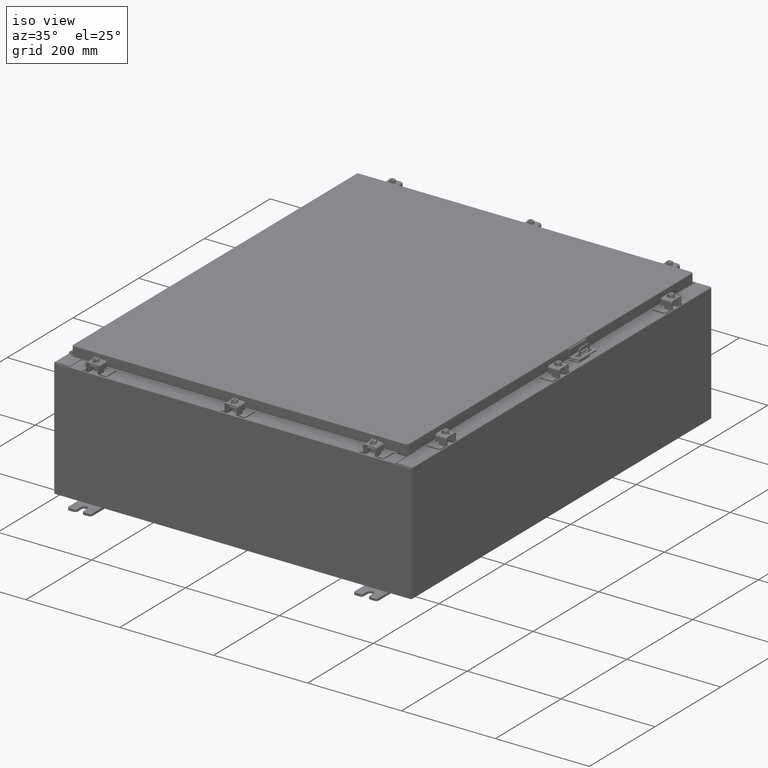
[diagram: clean part render]
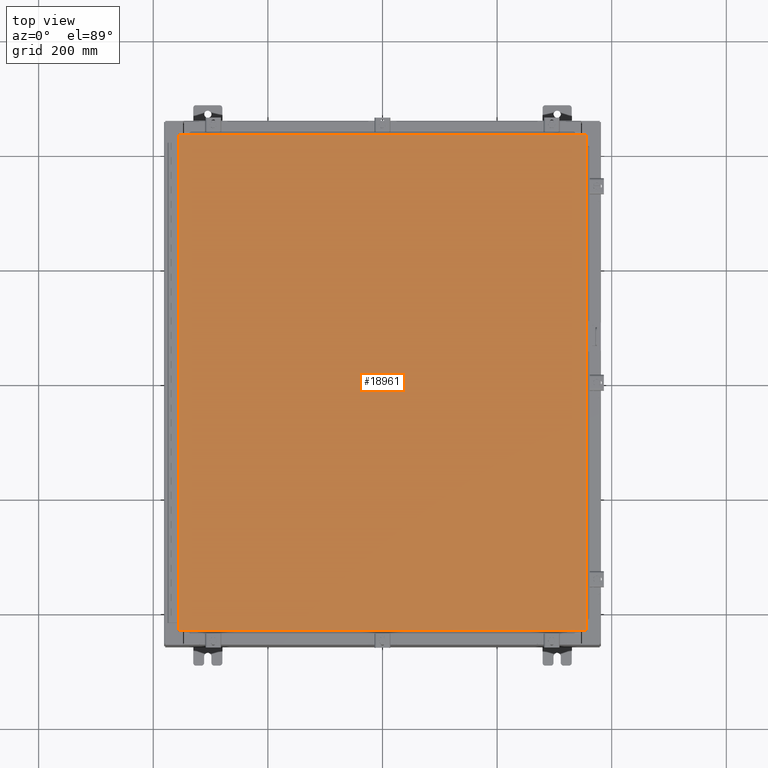
[diagram: tour spotlight — one face highlighted and labeled with its STEP entity id]
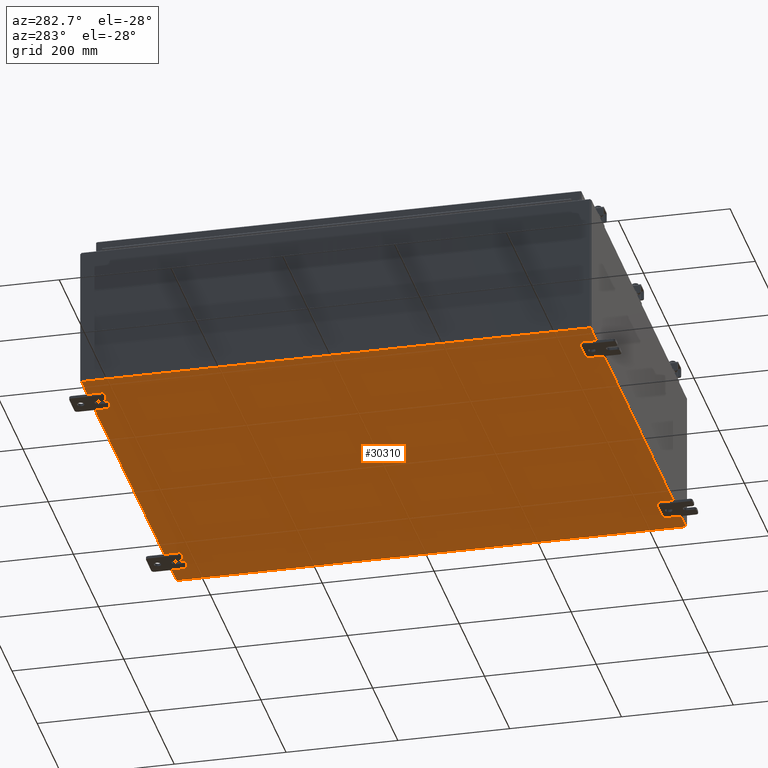
[diagram: tour spotlight — one face highlighted and labeled with its STEP entity id]
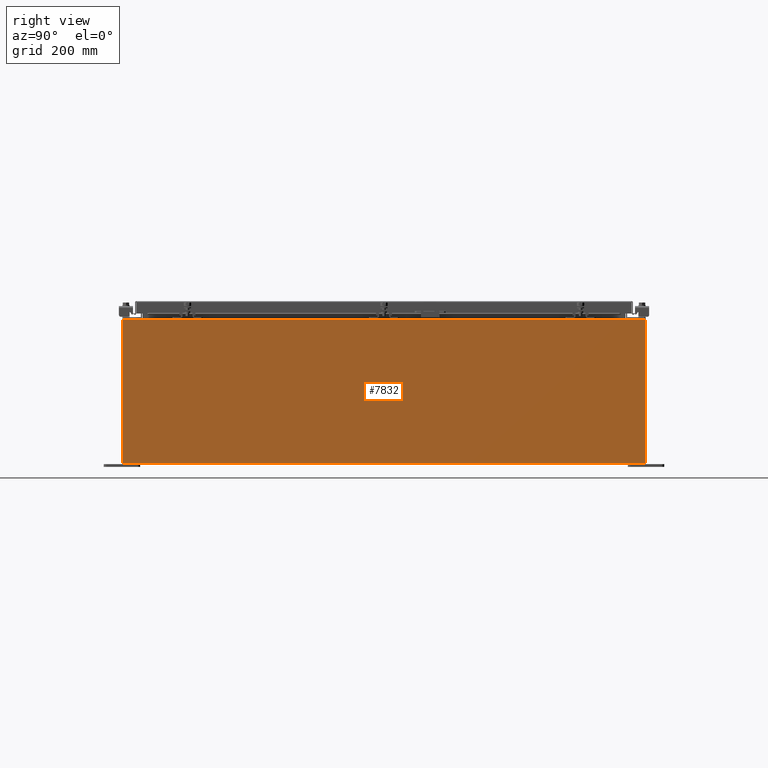
[diagram: tour spotlight — one face highlighted and labeled with its STEP entity id]
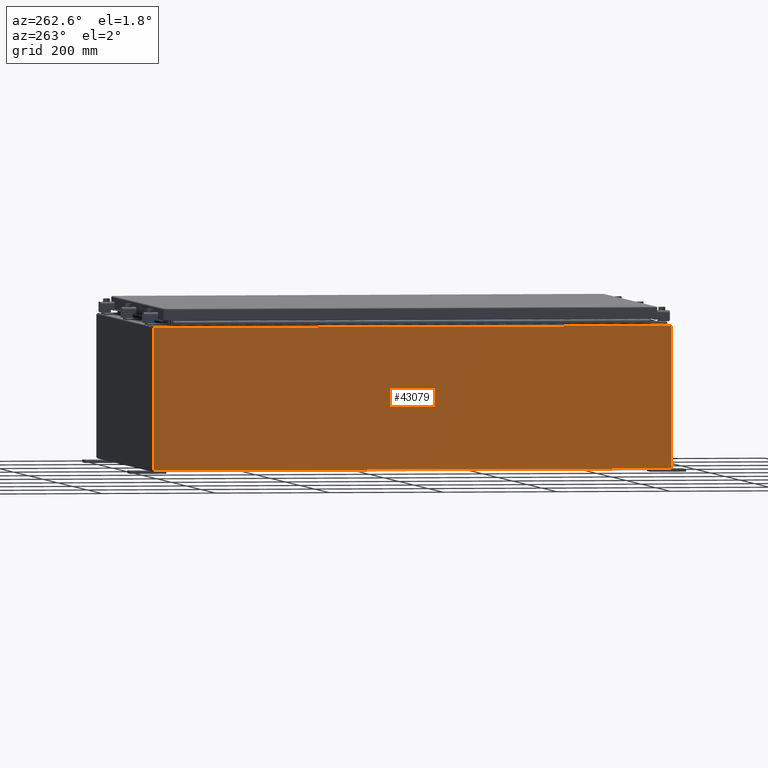
[diagram: tour spotlight — one face highlighted and labeled with its STEP entity id]
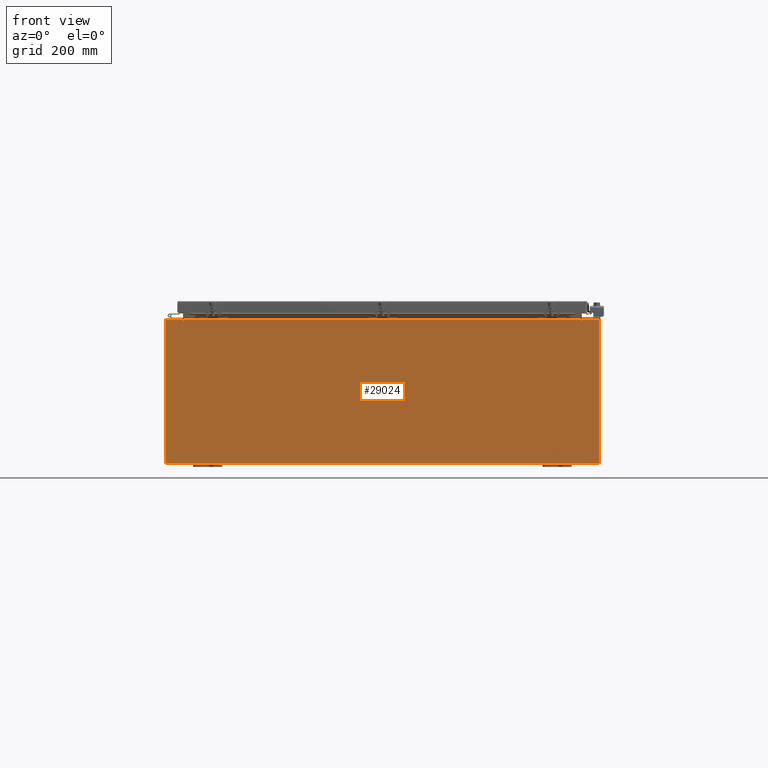
[diagram: tour spotlight — one face highlighted and labeled with its STEP entity id]
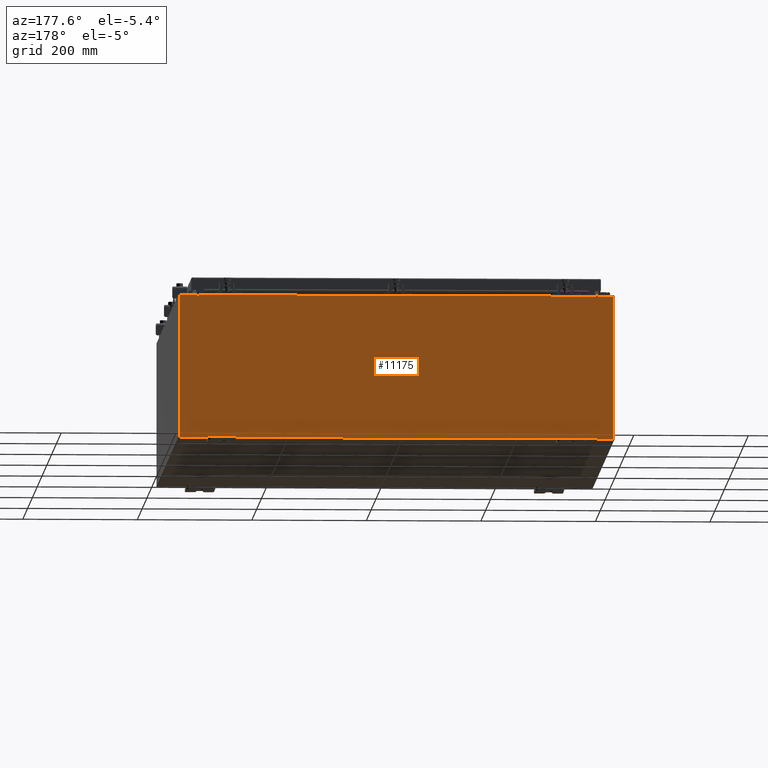
[diagram: tour spotlight — one face highlighted and labeled with its STEP entity id]
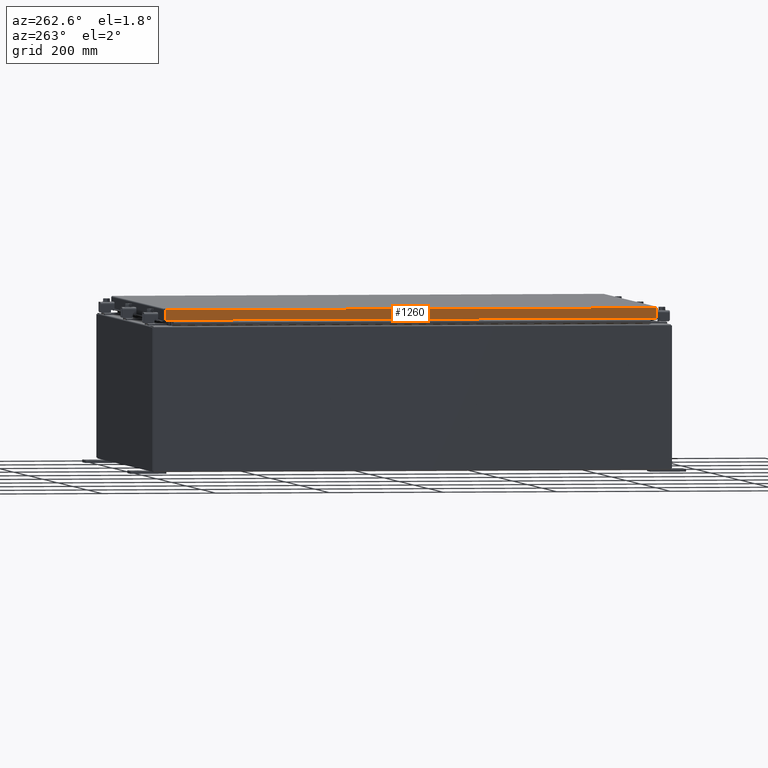
[diagram: tour spotlight — one face highlighted and labeled with its STEP entity id]
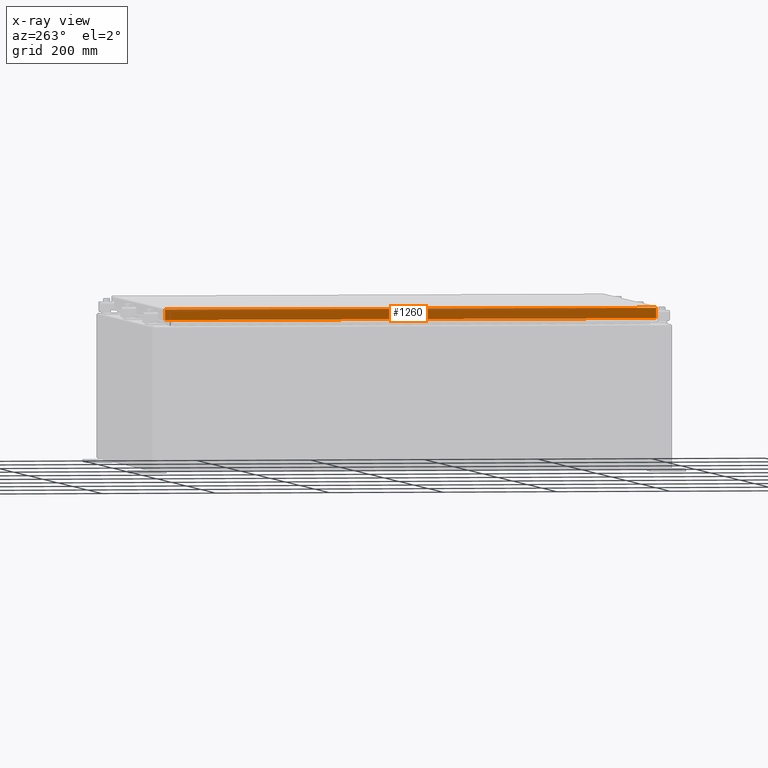
[diagram: x-ray of the same camera — body ghosted, this tour face saturated]
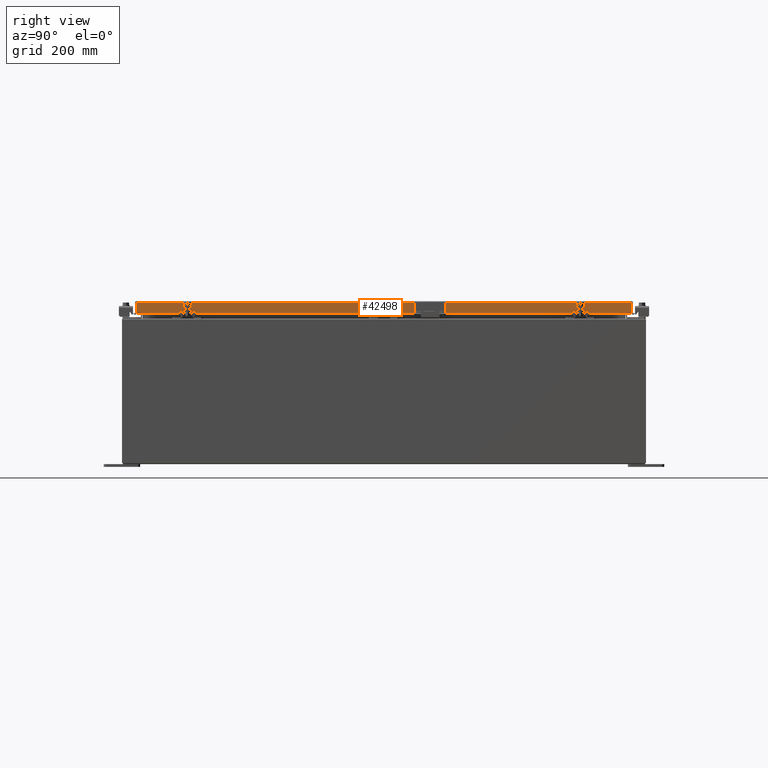
[diagram: tour spotlight — one face highlighted and labeled with its STEP entity id]
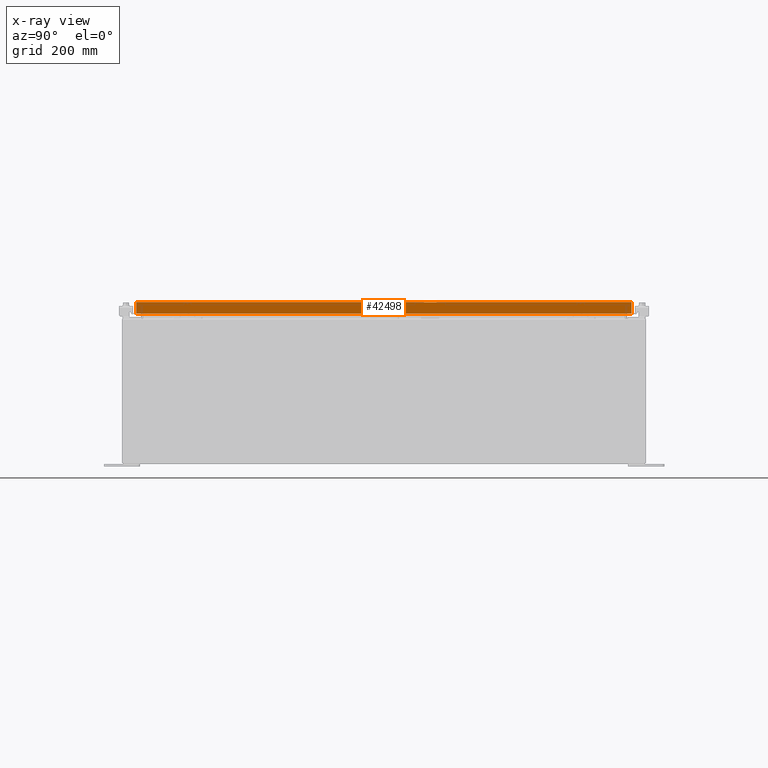
[diagram: x-ray of the same camera — body ghosted, this tour face saturated]
A machine part: a face-by-face anatomy tour. The part has 2456 B-rep faces; the first image is the clean iso view, then the 8 largest visible faces are spotlighted one at a time (largest first), each with its STEP entity span.

Face 1 — top view, entity #18961. In plain terms, the highlighted planar face has unit normal (0, 0, -1).
Definition (entity closure, byte-faithful):
#529 = VECTOR ( 'NONE', #34616, 39.37007874015748100 ) ;
#2451 = ORIENTED_EDGE ( 'NONE', *, *, #9127, .T. ) ;
#2503 = CARTESIAN_POINT ( 'NONE',  ( 0.0000000000000000000, 0.0000000000000000000, 0.0000000000000000000 ) ) ;
#3462 = FACE_OUTER_BOUND ( 'NONE', #22093, .T. ) ;
#6530 = LINE ( 'NONE', #31890, #41000 ) ;
#9127 = EDGE_CURVE ( 'NONE', #14472, #34192, #16254, .T. ) ;
#11123 = VECTOR ( 'NONE', #30682, 39.37007874015748100 ) ;
#12561 = ORIENTED_EDGE ( 'NONE', *, *, #33773, .T. ) ;
#13932 = ORIENTED_EDGE ( 'NONE', *, *, #42175, .T. ) ;
#14472 = VERTEX_POINT ( 'NONE', #16589 ) ;
#16254 = LINE ( 'NONE', #38792, #25107 ) ;
#16589 = CARTESIAN_POINT ( 'NONE',  ( 13.99029999999999200, -17.00630000000000000, -2.048885995248197400E-016 ) ) ;
#17980 = CARTESIAN_POINT ( 'NONE',  ( -13.99030000000000700, 17.00630000000000000, -2.048885995248197400E-016 ) ) ;
#18961 = ADVANCED_FACE ( 'NONE', ( #3462 ), #43164, .F. ) ;
#20161 = VERTEX_POINT ( 'NONE', #34060 ) ;
#22093 = EDGE_LOOP ( 'NONE', ( #12561, #2451, #42015, #13932 ) ) ;
#24254 = CARTESIAN_POINT ( 'NONE',  ( 13.99029999999999200, 17.00630000000000300, -1.297627796990525000E-015 ) ) ;
#25107 = VECTOR ( 'NONE', #38880, 39.37007874015748100 ) ;
#26065 = LINE ( 'NONE', #17980, #529 ) ;
#30682 = DIRECTION ( 'NONE',  ( -1.000000000000000000, -0.0000000000000000000, -0.0000000000000000000 ) ) ;
#31890 = CARTESIAN_POINT ( 'NONE',  ( -13.99030000000000700, -17.00630000000000000, -2.048885995248197400E-016 ) ) ;
#32035 = DIRECTION ( 'NONE',  ( 1.000000000000000000, -0.0000000000000000000, -0.0000000000000000000 ) ) ;
#33773 = EDGE_CURVE ( 'NONE', #20161, #14472, #6530, .T. ) ;
#34060 = CARTESIAN_POINT ( 'NONE',  ( -13.99030000000000700, -17.00630000000000000, -2.048885995248197400E-016 ) ) ;
#34192 = VERTEX_POINT ( 'NONE', #24254 ) ;
#34616 = DIRECTION ( 'NONE',  ( 0.0000000000000000000, -1.000000000000000000, 0.0000000000000000000 ) ) ;
#35675 = LINE ( 'NONE', #40488, #11123 ) ;
#38792 = CARTESIAN_POINT ( 'NONE',  ( 13.99029999999999200, -17.00630000000000000, -2.048885995248197400E-016 ) ) ;
#38880 = DIRECTION ( 'NONE',  ( 0.0000000000000000000, 1.000000000000000000, 0.0000000000000000000 ) ) ;
#39087 = EDGE_CURVE ( 'NONE', #34192, #40951, #35675, .T. ) ;
#40488 = CARTESIAN_POINT ( 'NONE',  ( 13.99029999999999200, 17.00630000000000300, -1.297627796990525000E-015 ) ) ;
#40951 = VERTEX_POINT ( 'NONE', #41149 ) ;
#41000 = VECTOR ( 'NONE', #32035, 39.37007874015748100 ) ;
#41149 = CARTESIAN_POINT ( 'NONE',  ( -13.99030000000000700, 17.00630000000000000, -2.048885995248197400E-016 ) ) ;
#42015 = ORIENTED_EDGE ( 'NONE', *, *, #39087, .T. ) ;
#42175 = EDGE_CURVE ( 'NONE', #40951, #20161, #26065, .T. ) ;
#42315 = AXIS2_PLACEMENT_3D ( 'NONE', #2503, #42785, #42741 ) ;
#42741 = DIRECTION ( 'NONE',  ( -1.000000000000000000, 0.0000000000000000000, -0.0000000000000000000 ) ) ;
#42785 = DIRECTION ( 'NONE',  ( 0.0000000000000000000, 0.0000000000000000000, -1.000000000000000000 ) ) ;
#43164 = PLANE ( 'NONE',  #42315 ) ;

Face 2 — auxiliary view, entity #30310. In plain terms, the highlighted planar face has unit normal (0, 0, -1).
Definition (entity closure, byte-faithful):
#172 = DIRECTION ( 'NONE',  ( -1.000000000000000000, -0.0000000000000000000, -0.0000000000000000000 ) ) ;
#863 = VECTOR ( 'NONE', #24261, 39.37007874015748100 ) ;
#1803 = LINE ( 'NONE', #38971, #8518 ) ;
#4050 = ORIENTED_EDGE ( 'NONE', *, *, #31855, .F. ) ;
#4171 = CARTESIAN_POINT ( 'NONE',  ( -15.00000000000000400, -17.92530000000000000, -0.07470000000000000300 ) ) ;
#5124 = CARTESIAN_POINT ( 'NONE',  ( 0.0000000000000000000, 0.0000000000000000000, -0.07470000000000000300 ) ) ;
#6962 = VERTEX_POINT ( 'NONE', #41566 ) ;
#8518 = VECTOR ( 'NONE', #38619, 39.37007874015748100 ) ;
#11788 = LINE ( 'NONE', #24875, #863 ) ;
#12545 = EDGE_CURVE ( 'NONE', #6962, #41616, #11788, .T. ) ;
#13882 = ORIENTED_EDGE ( 'NONE', *, *, #13960, .T. ) ;
#13960 = EDGE_CURVE ( 'NONE', #28551, #33397, #1803, .T. ) ;
#14650 = EDGE_LOOP ( 'NONE', ( #4050, #13882, #30644, #19834 ) ) ;
#15155 = CARTESIAN_POINT ( 'NONE',  ( -14.91230000000000200, -17.92530000000000000, -0.07469999999999994700 ) ) ;
#15165 = PLANE ( 'NONE',  #26825 ) ;
#15647 = FACE_OUTER_BOUND ( 'NONE', #14650, .T. ) ;
#17721 = DIRECTION ( 'NONE',  ( 1.000000000000000000, 0.0000000000000000000, 0.0000000000000000000 ) ) ;
#18515 = DIRECTION ( 'NONE',  ( 0.0000000000000000000, 0.0000000000000000000, -1.000000000000000000 ) ) ;
#19834 = ORIENTED_EDGE ( 'NONE', *, *, #12545, .T. ) ;
#23131 = CARTESIAN_POINT ( 'NONE',  ( -14.91230000000000200, 17.92530000000000000, -0.07470000000000000300 ) ) ;
#24261 = DIRECTION ( 'NONE',  ( -0.0000000000000000000, -1.000000000000000000, 8.208677865577646300E-017 ) ) ;
#24875 = CARTESIAN_POINT ( 'NONE',  ( 14.91229999999999800, 17.92530000000000000, -0.07470000000000251400 ) ) ;
#26825 = AXIS2_PLACEMENT_3D ( 'NONE', #5124, #18515, #41904 ) ;
#28204 = EDGE_CURVE ( 'NONE', #6962, #33397, #39841, .T. ) ;
#28551 = VERTEX_POINT ( 'NONE', #15155 ) ;
#29921 = VECTOR ( 'NONE', #172, 39.37007874015748100 ) ;
#30310 = ADVANCED_FACE ( 'NONE', ( #15647 ), #15165, .T. ) ;
#30644 = ORIENTED_EDGE ( 'NONE', *, *, #28204, .F. ) ;
#31222 = VECTOR ( 'NONE', #17721, 39.37007874015748100 ) ;
#31855 = EDGE_CURVE ( 'NONE', #28551, #41616, #41165, .T. ) ;
#33397 = VERTEX_POINT ( 'NONE', #23131 ) ;
#36794 = CARTESIAN_POINT ( 'NONE',  ( -15.00000000000000400, 17.92530000000000000, -0.07470000000000000300 ) ) ;
#38619 = DIRECTION ( 'NONE',  ( -0.0000000000000000000, 1.000000000000000000, -0.0000000000000000000 ) ) ;
#38971 = CARTESIAN_POINT ( 'NONE',  ( -14.91230000000000200, -17.92530000000000000, -0.07469999999999994700 ) ) ;
#39841 = LINE ( 'NONE', #36794, #29921 ) ;
#41165 = LINE ( 'NONE', #4171, #31222 ) ;
#41245 = CARTESIAN_POINT ( 'NONE',  ( 14.91229999999999800, -17.92530000000000000, -0.07470000000000000300 ) ) ;
#41566 = CARTESIAN_POINT ( 'NONE',  ( 14.91229999999999800, 17.92530000000000000, -0.07470000000000251400 ) ) ;
#41616 = VERTEX_POINT ( 'NONE', #41245 ) ;
#41904 = DIRECTION ( 'NONE',  ( -1.000000000000000000, 0.0000000000000000000, -0.0000000000000000000 ) ) ;

Face 3 — right view, entity #7832. In plain terms, the highlighted planar face has unit normal (-1, 0, 0).
Definition (entity closure, byte-faithful):
#558 = AXIS2_PLACEMENT_3D ( 'NONE', #16178, #15999, #15942 ) ;
#890 = VERTEX_POINT ( 'NONE', #16292 ) ;
#2385 = LINE ( 'NONE', #7942, #36829 ) ;
#3619 = LINE ( 'NONE', #12770, #8265 ) ;
#3812 = VECTOR ( 'NONE', #18937, 39.37007874015748100 ) ;
#3967 = CARTESIAN_POINT ( 'NONE',  ( 15.00000000000003400, -17.92530000000000000, 9.837600000000001900 ) ) ;
#4231 = ORIENTED_EDGE ( 'NONE', *, *, #35062, .T. ) ;
#6966 = CARTESIAN_POINT ( 'NONE',  ( 14.99999999999999800, -17.92530000000000000, -5.310705656892488900E-014 ) ) ;
#7832 = ADVANCED_FACE ( 'NONE', ( #28883 ), #16130, .F. ) ;
#7942 = CARTESIAN_POINT ( 'NONE',  ( 15.00000000000003400, 17.92530000000000000, 9.837599999999994800 ) ) ;
#8047 = DIRECTION ( 'NONE',  ( -0.0000000000000000000, -1.000000000000000000, -0.0000000000000000000 ) ) ;
#8265 = VECTOR ( 'NONE', #22699, 39.37007874015748100 ) ;
#9506 = VERTEX_POINT ( 'NONE', #31727 ) ;
#12608 = LINE ( 'NONE', #6966, #29318 ) ;
#12770 = CARTESIAN_POINT ( 'NONE',  ( 14.99999999999999800, -17.92530000000000000, 0.01299999999999984700 ) ) ;
#13222 = EDGE_CURVE ( 'NONE', #9506, #26979, #2385, .T. ) ;
#14335 = EDGE_LOOP ( 'NONE', ( #40212, #31894, #40664, #4231 ) ) ;
#15594 = CARTESIAN_POINT ( 'NONE',  ( 14.99999999999999800, 17.92530000000000000, -4.916003674356303100E-014 ) ) ;
#15942 = DIRECTION ( 'NONE',  ( 3.523082860860887800E-015, 0.0000000000000000000, 1.000000000000000000 ) ) ;
#15999 = DIRECTION ( 'NONE',  ( -1.000000000000000000, 0.0000000000000000000, 3.523082860860887800E-015 ) ) ;
#16130 = PLANE ( 'NONE',  #558 ) ;
#16178 = CARTESIAN_POINT ( 'NONE',  ( 14.99999999999999800, 0.0000000000000000000, -5.310705656892488900E-014 ) ) ;
#16292 = CARTESIAN_POINT ( 'NONE',  ( 14.99999999999999800, -17.92530000000000000, 0.01300000000000022300 ) ) ;
#18937 = DIRECTION ( 'NONE',  ( 3.523082860860888200E-015, -2.201926788038055100E-016, 1.000000000000000000 ) ) ;
#20389 = DIRECTION ( 'NONE',  ( -3.523082860860888200E-015, 0.0000000000000000000, -1.000000000000000000 ) ) ;
#22699 = DIRECTION ( 'NONE',  ( 2.147696684564447600E-031, -1.000000000000000000, 6.096072018129156600E-017 ) ) ;
#22989 = EDGE_CURVE ( 'NONE', #32578, #890, #3619, .T. ) ;
#26979 = VERTEX_POINT ( 'NONE', #3967 ) ;
#28875 = EDGE_CURVE ( 'NONE', #26979, #890, #12608, .T. ) ;
#28883 = FACE_OUTER_BOUND ( 'NONE', #14335, .T. ) ;
#29318 = VECTOR ( 'NONE', #20389, 39.37007874015748100 ) ;
#31727 = CARTESIAN_POINT ( 'NONE',  ( 15.00000000000003400, 17.92530000000000000, 9.837599999999994800 ) ) ;
#31894 = ORIENTED_EDGE ( 'NONE', *, *, #28875, .T. ) ;
#32578 = VERTEX_POINT ( 'NONE', #35599 ) ;
#35062 = EDGE_CURVE ( 'NONE', #32578, #9506, #39307, .T. ) ;
#35599 = CARTESIAN_POINT ( 'NONE',  ( 14.99999999999999800, 17.92530000000000000, 0.01299999999999766100 ) ) ;
#36829 = VECTOR ( 'NONE', #8047, 39.37007874015748100 ) ;
#39307 = LINE ( 'NONE', #15594, #3812 ) ;
#40212 = ORIENTED_EDGE ( 'NONE', *, *, #13222, .T. ) ;
#40664 = ORIENTED_EDGE ( 'NONE', *, *, #22989, .F. ) ;

Face 4 — auxiliary view, entity #43079. In plain terms, the highlighted planar face has unit normal (1, 0, 0).
Definition (entity closure, byte-faithful):
#283 = AXIS2_PLACEMENT_3D ( 'NONE', #16355, #19838, #43197 ) ;
#2533 = FACE_OUTER_BOUND ( 'NONE', #5828, .T. ) ;
#2787 = ORIENTED_EDGE ( 'NONE', *, *, #3047, .T. ) ;
#3047 = EDGE_CURVE ( 'NONE', #39612, #29575, #28132, .T. ) ;
#4327 = ORIENTED_EDGE ( 'NONE', *, *, #12803, .F. ) ;
#5828 = EDGE_LOOP ( 'NONE', ( #2787, #40476, #4327, #27968 ) ) ;
#8687 = VECTOR ( 'NONE', #32984, 39.37007874015748100 ) ;
#12803 = EDGE_CURVE ( 'NONE', #28695, #22299, #26928, .T. ) ;
#15282 = VECTOR ( 'NONE', #42509, 39.37007874015748100 ) ;
#16355 = CARTESIAN_POINT ( 'NONE',  ( -15.00000000000000400, 0.0000000000000000000, -5.310705656892490100E-014 ) ) ;
#18056 = VECTOR ( 'NONE', #18298, 39.37007874015748100 ) ;
#18298 = DIRECTION ( 'NONE',  ( -0.0000000000000000000, 1.000000000000000000, -0.0000000000000000000 ) ) ;
#18791 = CARTESIAN_POINT ( 'NONE',  ( -15.00000000000000400, 17.92530000000000000, 0.01299999999999984700 ) ) ;
#19838 = DIRECTION ( 'NONE',  ( 1.000000000000000000, 0.0000000000000000000, 3.523082860860887800E-015 ) ) ;
#22299 = VERTEX_POINT ( 'NONE', #23217 ) ;
#23217 = CARTESIAN_POINT ( 'NONE',  ( -15.00000000000000400, 17.92530000000000000, 0.01299999999999984300 ) ) ;
#26064 = CARTESIAN_POINT ( 'NONE',  ( -15.00000000000000400, -17.92530000000000000, 0.01299999999999984700 ) ) ;
#26264 = CARTESIAN_POINT ( 'NONE',  ( -15.00000000000000400, -17.92530000000000000, -5.310705656892490100E-014 ) ) ;
#26928 = LINE ( 'NONE', #18791, #18056 ) ;
#27209 = CARTESIAN_POINT ( 'NONE',  ( -15.00000000000003700, -17.92530000000000000, 9.837599999999998300 ) ) ;
#27968 = ORIENTED_EDGE ( 'NONE', *, *, #32205, .T. ) ;
#28132 = LINE ( 'NONE', #41038, #33870 ) ;
#28695 = VERTEX_POINT ( 'NONE', #26064 ) ;
#29575 = VERTEX_POINT ( 'NONE', #40501 ) ;
#32205 = EDGE_CURVE ( 'NONE', #28695, #39612, #35336, .T. ) ;
#32984 = DIRECTION ( 'NONE',  ( -3.523082860860888200E-015, 0.0000000000000000000, 1.000000000000000000 ) ) ;
#33023 = LINE ( 'NONE', #39113, #15282 ) ;
#33103 = PLANE ( 'NONE',  #283 ) ;
#33870 = VECTOR ( 'NONE', #40589, 39.37007874015748100 ) ;
#35336 = LINE ( 'NONE', #26264, #8687 ) ;
#39113 = CARTESIAN_POINT ( 'NONE',  ( -15.00000000000000400, 17.92530000000000000, -5.310705656892490100E-014 ) ) ;
#39431 = EDGE_CURVE ( 'NONE', #29575, #22299, #33023, .T. ) ;
#39612 = VERTEX_POINT ( 'NONE', #27209 ) ;
#40476 = ORIENTED_EDGE ( 'NONE', *, *, #39431, .T. ) ;
#40501 = CARTESIAN_POINT ( 'NONE',  ( -15.00000000000003700, 17.92530000000000000, 9.837599999999998300 ) ) ;
#40589 = DIRECTION ( 'NONE',  ( 0.0000000000000000000, 1.000000000000000000, 0.0000000000000000000 ) ) ;
#41038 = CARTESIAN_POINT ( 'NONE',  ( -15.00000000000003700, -17.92530000000000000, 9.837599999999998300 ) ) ;
#42509 = DIRECTION ( 'NONE',  ( 3.523082860860888200E-015, 0.0000000000000000000, -1.000000000000000000 ) ) ;
#43079 = ADVANCED_FACE ( 'NONE', ( #2533 ), #33103, .F. ) ;
#43197 = DIRECTION ( 'NONE',  ( 3.523082860860887800E-015, 0.0000000000000000000, -1.000000000000000000 ) ) ;

Face 5 — front view, entity #29024. In plain terms, the highlighted planar face has unit normal (-0, 1, -0).
Definition (entity closure, byte-faithful):
#44 = EDGE_CURVE ( 'NONE', #40700, #10400, #14831, .T. ) ;
#2039 = LINE ( 'NONE', #23885, #36473 ) ;
#2411 = CARTESIAN_POINT ( 'NONE',  ( -14.92530000000000200, 0.0000000000000000000, 4.925300000000000000 ) ) ;
#2695 = VECTOR ( 'NONE', #16152, 39.37007874015748100 ) ;
#3085 = ORIENTED_EDGE ( 'NONE', *, *, #15722, .F. ) ;
#3120 = EDGE_CURVE ( 'NONE', #40700, #41797, #23939, .T. ) ;
#3676 = DIRECTION ( 'NONE',  ( 0.0000000000000000000, 0.0000000000000000000, -1.000000000000000000 ) ) ;
#3968 = EDGE_CURVE ( 'NONE', #4153, #41797, #34403, .T. ) ;
#4153 = VERTEX_POINT ( 'NONE', #25514 ) ;
#4390 = CARTESIAN_POINT ( 'NONE',  ( 14.92529999999999800, 0.0000000000000000000, 4.925300000000000000 ) ) ;
#4509 = DIRECTION ( 'NONE',  ( 0.0000000000000000000, -0.0000000000000000000, -1.000000000000000000 ) ) ;
#4787 = ORIENTED_EDGE ( 'NONE', *, *, #34090, .F. ) ;
#4945 = VECTOR ( 'NONE', #40344, 39.37007874015748100 ) ;
#5802 = DIRECTION ( 'NONE',  ( -1.000000000000000000, -0.0000000000000000000, -0.0000000000000000000 ) ) ;
#7545 = DIRECTION ( 'NONE',  ( 1.000000000000000000, 0.0000000000000000000, 0.0000000000000000000 ) ) ;
#8706 = ORIENTED_EDGE ( 'NONE', *, *, #44, .F. ) ;
#8958 = CARTESIAN_POINT ( 'NONE',  ( -14.92530000000000200, 0.0000000000000000000, -4.925300000000000000 ) ) ;
#9677 = ORIENTED_EDGE ( 'NONE', *, *, #3968, .F. ) ;
#10400 = VERTEX_POINT ( 'NONE', #12121 ) ;
#11177 = CARTESIAN_POINT ( 'NONE',  ( -14.92530000000000200, 0.0000000000000000000, 4.925300000000000000 ) ) ;
#12121 = CARTESIAN_POINT ( 'NONE',  ( -13.63720000000000000, -0.0000000000000000000, 4.874950000000000100 ) ) ;
#12771 = CARTESIAN_POINT ( 'NONE',  ( -13.67455000000000000, -0.0000000000000000000, 0.0000000000000000000 ) ) ;
#13244 = CARTESIAN_POINT ( 'NONE',  ( -13.67455000000000000, 0.0000000000000000000, 4.925300000000000000 ) ) ;
#13654 = CARTESIAN_POINT ( 'NONE',  ( -13.67455000000000000, 0.0000000000000000000, 4.874950000000000100 ) ) ;
#13658 = VECTOR ( 'NONE', #5802, 39.37007874015748100 ) ;
#14216 = ORIENTED_EDGE ( 'NONE', *, *, #20661, .T. ) ;
#14831 = LINE ( 'NONE', #34406, #40437 ) ;
#15722 = EDGE_CURVE ( 'NONE', #10400, #41456, #21446, .T. ) ;
#15847 = CARTESIAN_POINT ( 'NONE',  ( 13.63719999999999800, 0.0000000000000000000, 4.912300000000000100 ) ) ;
#16152 = DIRECTION ( 'NONE',  ( 0.0000000000000000000, 0.0000000000000000000, 1.000000000000000000 ) ) ;
#16870 = ORIENTED_EDGE ( 'NONE', *, *, #34806, .T. ) ;
#16996 = CARTESIAN_POINT ( 'NONE',  ( 13.67454999999978500, -0.0000000000000000000, -5.935537951421795000E-013 ) ) ;
#17314 = FACE_OUTER_BOUND ( 'NONE', #39326, .T. ) ;
#17491 = ORIENTED_EDGE ( 'NONE', *, *, #31033, .F. ) ;
#17572 = AXIS2_PLACEMENT_3D ( 'NONE', #34390, #24469, #4509 ) ;
#18730 = CARTESIAN_POINT ( 'NONE',  ( 13.67455000000000000, 0.0000000000000000000, 4.925300000000000000 ) ) ;
#19193 = ORIENTED_EDGE ( 'NONE', *, *, #31176, .T. ) ;
#19470 = LINE ( 'NONE', #23637, #36166 ) ;
#19673 = VERTEX_POINT ( 'NONE', #13244 ) ;
#19822 = CARTESIAN_POINT ( 'NONE',  ( 13.65587499999999800, 0.0000000000000000000, 4.874950000000000100 ) ) ;
#20544 = DIRECTION ( 'NONE',  ( 1.000000000000000000, 0.0000000000000000000, 0.0000000000000000000 ) ) ;
#20661 = EDGE_CURVE ( 'NONE', #37976, #21198, #19470, .T. ) ;
#20963 = PLANE ( 'NONE',  #17572 ) ;
#21198 = VERTEX_POINT ( 'NONE', #37613 ) ;
#21262 = DIRECTION ( 'NONE',  ( -0.0000000000000000000, -0.0000000000000000000, 1.000000000000000000 ) ) ;
#21446 = CIRCLE ( 'NONE', #21758, 0.01867499999999949400 ) ;
#21489 = EDGE_CURVE ( 'NONE', #21198, #28417, #22531, .T. ) ;
#21573 = EDGE_CURVE ( 'NONE', #41456, #19673, #37143, .T. ) ;
#21758 = AXIS2_PLACEMENT_3D ( 'NONE', #43109, #43102, #43053 ) ;
#21835 = DIRECTION ( 'NONE',  ( 0.0000000000000000000, 0.0000000000000000000, -1.000000000000000000 ) ) ;
#22111 = AXIS2_PLACEMENT_3D ( 'NONE', #19822, #43185, #23173 ) ;
#22531 = LINE ( 'NONE', #8958, #13658 ) ;
#23129 = VECTOR ( 'NONE', #7545, 39.37007874015748100 ) ;
#23173 = DIRECTION ( 'NONE',  ( 0.0000000000000000000, 0.0000000000000000000, -1.000000000000000000 ) ) ;
#23637 = CARTESIAN_POINT ( 'NONE',  ( 14.92529999999999800, 0.0000000000000000000, 4.925300000000000000 ) ) ;
#23885 = CARTESIAN_POINT ( 'NONE',  ( -14.92530000000000200, 0.0000000000000000000, 4.925300000000000000 ) ) ;
#23939 = LINE ( 'NONE', #36758, #30738 ) ;
#24469 = DIRECTION ( 'NONE',  ( 0.0000000000000000000, -1.000000000000000000, 0.0000000000000000000 ) ) ;
#24519 = CARTESIAN_POINT ( 'NONE',  ( -14.92530000000000200, 0.0000000000000000000, -4.925300000000000000 ) ) ;
#24568 = EDGE_CURVE ( 'NONE', #28417, #26301, #32238, .T. ) ;
#25004 = VERTEX_POINT ( 'NONE', #33478 ) ;
#25008 = CIRCLE ( 'NONE', #22111, 0.01867499999999949400 ) ;
#25504 = VECTOR ( 'NONE', #31097, 39.37007874015748100 ) ;
#25514 = CARTESIAN_POINT ( 'NONE',  ( 13.63719999999999800, 0.0000000000000000000, 4.874950000000000100 ) ) ;
#26233 = VERTEX_POINT ( 'NONE', #18730 ) ;
#26301 = VERTEX_POINT ( 'NONE', #2411 ) ;
#27493 = ORIENTED_EDGE ( 'NONE', *, *, #21489, .T. ) ;
#28417 = VERTEX_POINT ( 'NONE', #24519 ) ;
#29024 = ADVANCED_FACE ( 'NONE', ( #17314 ), #20963, .F. ) ;
#29578 = ORIENTED_EDGE ( 'NONE', *, *, #21573, .F. ) ;
#30738 = VECTOR ( 'NONE', #35387, 39.37007874015748100 ) ;
#31033 = EDGE_CURVE ( 'NONE', #25004, #4153, #25008, .T. ) ;
#31097 = DIRECTION ( 'NONE',  ( 0.0000000000000000000, 0.0000000000000000000, 1.000000000000000000 ) ) ;
#31176 = EDGE_CURVE ( 'NONE', #26233, #37976, #2039, .T. ) ;
#31206 = VECTOR ( 'NONE', #21262, 39.37007874015748100 ) ;
#31755 = CARTESIAN_POINT ( 'NONE',  ( 13.63719999999999800, 0.0000000000000000000, 0.0000000000000000000 ) ) ;
#31909 = ORIENTED_EDGE ( 'NONE', *, *, #3120, .T. ) ;
#32016 = LINE ( 'NONE', #34137, #23129 ) ;
#32238 = LINE ( 'NONE', #11177, #31206 ) ;
#33478 = CARTESIAN_POINT ( 'NONE',  ( 13.67454999999999800, 0.0000000000000000000, 4.874950000000000100 ) ) ;
#34090 = EDGE_CURVE ( 'NONE', #26233, #25004, #39383, .T. ) ;
#34137 = CARTESIAN_POINT ( 'NONE',  ( -14.92530000000000200, 0.0000000000000000000, 4.925300000000000000 ) ) ;
#34390 = CARTESIAN_POINT ( 'NONE',  ( 0.0000000000000000000, 0.0000000000000000000, 0.0000000000000000000 ) ) ;
#34403 = LINE ( 'NONE', #31755, #25504 ) ;
#34406 = CARTESIAN_POINT ( 'NONE',  ( -13.63720000000000000, -0.0000000000000000000, 0.0000000000000000000 ) ) ;
#34806 = EDGE_CURVE ( 'NONE', #26301, #19673, #32016, .T. ) ;
#35387 = DIRECTION ( 'NONE',  ( 1.000000000000000000, 0.0000000000000000000, 0.0000000000000000000 ) ) ;
#36166 = VECTOR ( 'NONE', #3676, 39.37007874015748100 ) ;
#36455 = CARTESIAN_POINT ( 'NONE',  ( -13.63720000000000000, -7.171100983368691200E-016, 4.912300000000000100 ) ) ;
#36473 = VECTOR ( 'NONE', #20544, 39.37007874015748100 ) ;
#36758 = CARTESIAN_POINT ( 'NONE',  ( -13.63720000000000400, -7.171100983368691200E-016, 4.912300000000000100 ) ) ;
#37143 = LINE ( 'NONE', #12771, #2695 ) ;
#37613 = CARTESIAN_POINT ( 'NONE',  ( 14.92529999999999800, 0.0000000000000000000, -4.925300000000000000 ) ) ;
#37976 = VERTEX_POINT ( 'NONE', #4390 ) ;
#39326 = EDGE_LOOP ( 'NONE', ( #29578, #3085, #8706, #31909, #9677, #17491, #4787, #19193, #14216, #27493, #39668, #16870 ) ) ;
#39383 = LINE ( 'NONE', #16996, #4945 ) ;
#39668 = ORIENTED_EDGE ( 'NONE', *, *, #24568, .T. ) ;
#40344 = DIRECTION ( 'NONE',  ( -4.340572780400004900E-014, 0.0000000000000000000, -1.000000000000000000 ) ) ;
#40437 = VECTOR ( 'NONE', #21835, 39.37007874015748100 ) ;
#40700 = VERTEX_POINT ( 'NONE', #36455 ) ;
#41456 = VERTEX_POINT ( 'NONE', #13654 ) ;
#41797 = VERTEX_POINT ( 'NONE', #15847 ) ;
#43053 = DIRECTION ( 'NONE',  ( 0.0000000000000000000, 0.0000000000000000000, -1.000000000000000000 ) ) ;
#43102 = DIRECTION ( 'NONE',  ( -0.0000000000000000000, 1.000000000000000000, -0.0000000000000000000 ) ) ;
#43109 = CARTESIAN_POINT ( 'NONE',  ( -13.65587500000000000, 0.0000000000000000000, 4.874950000000000100 ) ) ;
#43185 = DIRECTION ( 'NONE',  ( -0.0000000000000000000, 1.000000000000000000, -0.0000000000000000000 ) ) ;

Face 6 — auxiliary view, entity #11175. In plain terms, the highlighted planar face has unit normal (0, -1, 0).
Definition (entity closure, byte-faithful):
#1077 = DIRECTION ( 'NONE',  ( 0.0000000000000000000, 0.0000000000000000000, -1.000000000000000000 ) ) ;
#1094 = ORIENTED_EDGE ( 'NONE', *, *, #4084, .F. ) ;
#1117 = VECTOR ( 'NONE', #8655, 39.37007874015748100 ) ;
#1277 = EDGE_CURVE ( 'NONE', #2391, #20714, #13156, .T. ) ;
#1428 = LINE ( 'NONE', #10185, #18109 ) ;
#1578 = EDGE_CURVE ( 'NONE', #18648, #29314, #18334, .T. ) ;
#2102 = EDGE_CURVE ( 'NONE', #12707, #20714, #42865, .T. ) ;
#2170 = LINE ( 'NONE', #21978, #18851 ) ;
#2391 = VERTEX_POINT ( 'NONE', #41132 ) ;
#4084 = EDGE_CURVE ( 'NONE', #2391, #8447, #40154, .T. ) ;
#4859 = EDGE_CURVE ( 'NONE', #36544, #9173, #1428, .T. ) ;
#5853 = LINE ( 'NONE', #28253, #13672 ) ;
#5932 = CARTESIAN_POINT ( 'NONE',  ( -13.67455000000000000, 0.0000000000000000000, 4.925300000000000000 ) ) ;
#6266 = ORIENTED_EDGE ( 'NONE', *, *, #1578, .F. ) ;
#6464 = VERTEX_POINT ( 'NONE', #36033 ) ;
#7537 = CARTESIAN_POINT ( 'NONE',  ( -14.92530000000000200, 0.0000000000000000000, 4.925300000000000000 ) ) ;
#8447 = VERTEX_POINT ( 'NONE', #28373 ) ;
#8509 = DIRECTION ( 'NONE',  ( -4.340572780400004900E-014, 0.0000000000000000000, -1.000000000000000000 ) ) ;
#8655 = DIRECTION ( 'NONE',  ( 1.000000000000000000, 0.0000000000000000000, 0.0000000000000000000 ) ) ;
#9173 = VERTEX_POINT ( 'NONE', #37816 ) ;
#9996 = DIRECTION ( 'NONE',  ( -1.000000000000000000, -0.0000000000000000000, -0.0000000000000000000 ) ) ;
#10185 = CARTESIAN_POINT ( 'NONE',  ( -14.92530000000000200, 0.0000000000000000000, -4.925300000000000000 ) ) ;
#10392 = CIRCLE ( 'NONE', #12534, 0.01867499999999949400 ) ;
#10625 = CARTESIAN_POINT ( 'NONE',  ( 13.63719999999999800, 0.0000000000000000000, 4.912300000000000100 ) ) ;
#11000 = LINE ( 'NONE', #42000, #1117 ) ;
#11131 = AXIS2_PLACEMENT_3D ( 'NONE', #36090, #16127, #39461 ) ;
#11175 = ADVANCED_FACE ( 'NONE', ( #14549 ), #32562, .F. ) ;
#11188 = ORIENTED_EDGE ( 'NONE', *, *, #4859, .T. ) ;
#12445 = VECTOR ( 'NONE', #27270, 39.37007874015748100 ) ;
#12534 = AXIS2_PLACEMENT_3D ( 'NONE', #41069, #21045, #1077 ) ;
#12707 = VERTEX_POINT ( 'NONE', #20375 ) ;
#12939 = EDGE_CURVE ( 'NONE', #31457, #36544, #41582, .T. ) ;
#13156 = LINE ( 'NONE', #25089, #29872 ) ;
#13672 = VECTOR ( 'NONE', #28443, 39.37007874015748100 ) ;
#14549 = FACE_OUTER_BOUND ( 'NONE', #28277, .T. ) ;
#14999 = CARTESIAN_POINT ( 'NONE',  ( 14.92529999999999800, 0.0000000000000000000, 4.925300000000000000 ) ) ;
#15187 = EDGE_CURVE ( 'NONE', #16734, #31457, #5853, .T. ) ;
#15200 = DIRECTION ( 'NONE',  ( 0.0000000000000000000, 0.0000000000000000000, -1.000000000000000000 ) ) ;
#16127 = DIRECTION ( 'NONE',  ( -0.0000000000000000000, 1.000000000000000000, -0.0000000000000000000 ) ) ;
#16632 = ORIENTED_EDGE ( 'NONE', *, *, #42120, .F. ) ;
#16734 = VERTEX_POINT ( 'NONE', #21643 ) ;
#16839 = VERTEX_POINT ( 'NONE', #19826 ) ;
#16902 = ORIENTED_EDGE ( 'NONE', *, *, #1277, .T. ) ;
#17416 = AXIS2_PLACEMENT_3D ( 'NONE', #32874, #32307, #32224 ) ;
#18109 = VECTOR ( 'NONE', #9996, 39.37007874015748100 ) ;
#18334 = LINE ( 'NONE', #30813, #35038 ) ;
#18648 = VERTEX_POINT ( 'NONE', #38151 ) ;
#18851 = VECTOR ( 'NONE', #8509, 39.37007874015748100 ) ;
#19826 = CARTESIAN_POINT ( 'NONE',  ( -14.92530000000000200, 0.0000000000000000000, 4.925300000000000000 ) ) ;
#20375 = CARTESIAN_POINT ( 'NONE',  ( 13.63719999999999800, 0.0000000000000000000, 4.874950000000000100 ) ) ;
#20579 = CARTESIAN_POINT ( 'NONE',  ( 14.92529999999999800, 0.0000000000000000000, -4.925300000000000000 ) ) ;
#20596 = DIRECTION ( 'NONE',  ( 0.0000000000000000000, 0.0000000000000000000, 1.000000000000000000 ) ) ;
#20714 = VERTEX_POINT ( 'NONE', #10625 ) ;
#21045 = DIRECTION ( 'NONE',  ( -0.0000000000000000000, 1.000000000000000000, -0.0000000000000000000 ) ) ;
#21643 = CARTESIAN_POINT ( 'NONE',  ( 13.67455000000000000, 0.0000000000000000000, 4.925300000000000000 ) ) ;
#21951 = CIRCLE ( 'NONE', #11131, 0.01867499999999949400 ) ;
#21978 = CARTESIAN_POINT ( 'NONE',  ( 13.67454999999978500, -0.0000000000000000000, -5.935537951421795000E-013 ) ) ;
#22745 = VECTOR ( 'NONE', #15200, 39.37007874015748100 ) ;
#22780 = ORIENTED_EDGE ( 'NONE', *, *, #40907, .T. ) ;
#25072 = VECTOR ( 'NONE', #38493, 39.37007874015748100 ) ;
#25089 = CARTESIAN_POINT ( 'NONE',  ( -13.63720000000000400, -7.171100983368691200E-016, 4.912300000000000100 ) ) ;
#25620 = CARTESIAN_POINT ( 'NONE',  ( 14.92529999999999800, 0.0000000000000000000, 4.925300000000000000 ) ) ;
#25670 = VECTOR ( 'NONE', #37621, 39.37007874015748100 ) ;
#25879 = ORIENTED_EDGE ( 'NONE', *, *, #29177, .F. ) ;
#26476 = ORIENTED_EDGE ( 'NONE', *, *, #12939, .T. ) ;
#26505 = DIRECTION ( 'NONE',  ( 1.000000000000000000, 0.0000000000000000000, 0.0000000000000000000 ) ) ;
#27270 = DIRECTION ( 'NONE',  ( 0.0000000000000000000, 0.0000000000000000000, -1.000000000000000000 ) ) ;
#27277 = CARTESIAN_POINT ( 'NONE',  ( -13.63720000000000000, -0.0000000000000000000, 0.0000000000000000000 ) ) ;
#27315 = ORIENTED_EDGE ( 'NONE', *, *, #29186, .T. ) ;
#28253 = CARTESIAN_POINT ( 'NONE',  ( -14.92530000000000200, 0.0000000000000000000, 4.925300000000000000 ) ) ;
#28277 = EDGE_LOOP ( 'NONE', ( #6266, #16632, #1094, #16902, #42091, #30133, #25879, #29312, #26476, #11188, #22780, #27315 ) ) ;
#28373 = CARTESIAN_POINT ( 'NONE',  ( -13.63720000000000000, -0.0000000000000000000, 4.874950000000000100 ) ) ;
#28443 = DIRECTION ( 'NONE',  ( 1.000000000000000000, 0.0000000000000000000, 0.0000000000000000000 ) ) ;
#29177 = EDGE_CURVE ( 'NONE', #16734, #6464, #2170, .T. ) ;
#29186 = EDGE_CURVE ( 'NONE', #16839, #29314, #11000, .T. ) ;
#29312 = ORIENTED_EDGE ( 'NONE', *, *, #15187, .T. ) ;
#29314 = VERTEX_POINT ( 'NONE', #5932 ) ;
#29872 = VECTOR ( 'NONE', #26505, 39.37007874015748100 ) ;
#30133 = ORIENTED_EDGE ( 'NONE', *, *, #41814, .F. ) ;
#30813 = CARTESIAN_POINT ( 'NONE',  ( -13.67455000000000000, -0.0000000000000000000, 0.0000000000000000000 ) ) ;
#31457 = VERTEX_POINT ( 'NONE', #25620 ) ;
#32224 = DIRECTION ( 'NONE',  ( 0.0000000000000000000, -0.0000000000000000000, -1.000000000000000000 ) ) ;
#32307 = DIRECTION ( 'NONE',  ( 0.0000000000000000000, -1.000000000000000000, 0.0000000000000000000 ) ) ;
#32562 = PLANE ( 'NONE',  #17416 ) ;
#32874 = CARTESIAN_POINT ( 'NONE',  ( 0.0000000000000000000, 0.0000000000000000000, 0.0000000000000000000 ) ) ;
#34558 = LINE ( 'NONE', #7537, #25670 ) ;
#35038 = VECTOR ( 'NONE', #20596, 39.37007874015748100 ) ;
#36033 = CARTESIAN_POINT ( 'NONE',  ( 13.67454999999999800, 0.0000000000000000000, 4.874950000000000100 ) ) ;
#36090 = CARTESIAN_POINT ( 'NONE',  ( 13.65587499999999800, 0.0000000000000000000, 4.874950000000000100 ) ) ;
#36544 = VERTEX_POINT ( 'NONE', #20579 ) ;
#37621 = DIRECTION ( 'NONE',  ( -0.0000000000000000000, -0.0000000000000000000, 1.000000000000000000 ) ) ;
#37816 = CARTESIAN_POINT ( 'NONE',  ( -14.92530000000000200, 0.0000000000000000000, -4.925300000000000000 ) ) ;
#38151 = CARTESIAN_POINT ( 'NONE',  ( -13.67455000000000000, 0.0000000000000000000, 4.874950000000000100 ) ) ;
#38493 = DIRECTION ( 'NONE',  ( 0.0000000000000000000, 0.0000000000000000000, 1.000000000000000000 ) ) ;
#38725 = CARTESIAN_POINT ( 'NONE',  ( 13.63719999999999800, 0.0000000000000000000, 0.0000000000000000000 ) ) ;
#39461 = DIRECTION ( 'NONE',  ( 0.0000000000000000000, 0.0000000000000000000, -1.000000000000000000 ) ) ;
#40154 = LINE ( 'NONE', #27277, #12445 ) ;
#40907 = EDGE_CURVE ( 'NONE', #9173, #16839, #34558, .T. ) ;
#41069 = CARTESIAN_POINT ( 'NONE',  ( -13.65587500000000000, 0.0000000000000000000, 4.874950000000000100 ) ) ;
#41132 = CARTESIAN_POINT ( 'NONE',  ( -13.63720000000000000, -7.171100983368691200E-016, 4.912300000000000100 ) ) ;
#41582 = LINE ( 'NONE', #14999, #22745 ) ;
#41814 = EDGE_CURVE ( 'NONE', #6464, #12707, #21951, .T. ) ;
#42000 = CARTESIAN_POINT ( 'NONE',  ( -14.92530000000000200, 0.0000000000000000000, 4.925300000000000000 ) ) ;
#42091 = ORIENTED_EDGE ( 'NONE', *, *, #2102, .F. ) ;
#42120 = EDGE_CURVE ( 'NONE', #8447, #18648, #10392, .T. ) ;
#42865 = LINE ( 'NONE', #38725, #25072 ) ;

Face 7 — auxiliary view, entity #1260. An x-ray twin of the same camera follows (body ghosted, this face saturated) — the face is partly hidden behind the body. In plain terms, the highlighted planar face has unit normal (1, 0, -0).
Definition (entity closure, byte-faithful):
#476 = DIRECTION ( 'NONE',  ( -3.034122441942816500E-015, 0.0000000000000000000, -1.000000000000000000 ) ) ;
#807 = LINE ( 'NONE', #28230, #34210 ) ;
#1260 = ADVANCED_FACE ( 'NONE', ( #39786 ), #26422, .F. ) ;
#1915 = CARTESIAN_POINT ( 'NONE',  ( -14.07800000000000700, -5.290401063892181200E-030, 4.297518939368256700E-014 ) ) ;
#2073 = DIRECTION ( 'NONE',  ( 3.757920914826097400E-031, -1.000000000000000000, -1.107764513432648300E-045 ) ) ;
#2872 = ORIENTED_EDGE ( 'NONE', *, *, #19337, .T. ) ;
#3955 = VECTOR ( 'NONE', #12975, 39.37007874015748100 ) ;
#5937 = EDGE_CURVE ( 'NONE', #31539, #42252, #30566, .T. ) ;
#6411 = DIRECTION ( 'NONE',  ( 1.000000000000000000, 3.757920914826096500E-031, -3.034122441942816500E-015 ) ) ;
#12464 = ORIENTED_EDGE ( 'NONE', *, *, #5937, .F. ) ;
#12975 = DIRECTION ( 'NONE',  ( 4.379057701015054300E-047, 1.000000000000000000, 1.238552822680358400E-016 ) ) ;
#13030 = CARTESIAN_POINT ( 'NONE',  ( -14.07800000000000800, -17.09400000000000100, -0.7949999999999997100 ) ) ;
#13047 = ORIENTED_EDGE ( 'NONE', *, *, #16284, .F. ) ;
#15834 = VERTEX_POINT ( 'NONE', #41393 ) ;
#16284 = EDGE_CURVE ( 'NONE', #15834, #31539, #36016, .T. ) ;
#19337 = EDGE_CURVE ( 'NONE', #37154, #42252, #807, .T. ) ;
#21020 = ORIENTED_EDGE ( 'NONE', *, *, #42884, .F. ) ;
#25385 = CARTESIAN_POINT ( 'NONE',  ( -14.07800000000000700, -17.09400000000000100, -0.08770000000000004200 ) ) ;
#26422 = PLANE ( 'NONE',  #28940 ) ;
#28172 = DIRECTION ( 'NONE',  ( -3.034122441942816500E-015, 6.982962677686265900E-015, -1.000000000000000000 ) ) ;
#28230 = CARTESIAN_POINT ( 'NONE',  ( -14.07800000000000700, 17.00515786437627200, 1.617215720887851800E-013 ) ) ;
#28940 = AXIS2_PLACEMENT_3D ( 'NONE', #1915, #6411, #476 ) ;
#29420 = CARTESIAN_POINT ( 'NONE',  ( -14.07800000000000800, -17.00515786437626500, -0.7949999999999996000 ) ) ;
#30566 = LINE ( 'NONE', #13030, #3955 ) ;
#30853 = EDGE_LOOP ( 'NONE', ( #21020, #2872, #12464, #13047 ) ) ;
#31539 = VERTEX_POINT ( 'NONE', #29420 ) ;
#31672 = DIRECTION ( 'NONE',  ( -3.034122441942816500E-015, 6.982962677686265900E-015, -1.000000000000000000 ) ) ;
#31681 = CARTESIAN_POINT ( 'NONE',  ( -14.07800000000000700, -17.00515786437626900, -0.07469999999999976700 ) ) ;
#33446 = CARTESIAN_POINT ( 'NONE',  ( -14.07800000000000700, 17.00515786437627200, -0.08770000000000004200 ) ) ;
#33933 = VECTOR ( 'NONE', #31672, 39.37007874015748100 ) ;
#34210 = VECTOR ( 'NONE', #28172, 39.37007874015748100 ) ;
#35421 = VECTOR ( 'NONE', #2073, 39.37007874015748100 ) ;
#36016 = LINE ( 'NONE', #31681, #33933 ) ;
#36468 = LINE ( 'NONE', #25385, #35421 ) ;
#37154 = VERTEX_POINT ( 'NONE', #33446 ) ;
#39786 = FACE_OUTER_BOUND ( 'NONE', #30853, .T. ) ;
#41393 = CARTESIAN_POINT ( 'NONE',  ( -14.07800000000000700, -17.00515786437626900, -0.08770000000000007000 ) ) ;
#41794 = CARTESIAN_POINT ( 'NONE',  ( -14.07800000000000800, 17.00515786437627600, -0.7949999999999954900 ) ) ;
#42252 = VERTEX_POINT ( 'NONE', #41794 ) ;
#42884 = EDGE_CURVE ( 'NONE', #37154, #15834, #36468, .T. ) ;

Face 8 — right view, entity #42498. An x-ray twin of the same camera follows (body ghosted, this face saturated) — the face is partly hidden behind the body. In plain terms, the highlighted planar face has unit normal (1, 0, 0).
Definition (entity closure, byte-faithful):
#1544 = LINE ( 'NONE', #23228, #18213 ) ;
#2937 = VECTOR ( 'NONE', #5003, 39.37007874015748100 ) ;
#5003 = DIRECTION ( 'NONE',  ( -2.818880942772360500E-015, -6.982962677686269100E-015, 1.000000000000000000 ) ) ;
#5058 = CARTESIAN_POINT ( 'NONE',  ( 14.07799999999999400, -17.00515786437626900, -0.07469999999999978000 ) ) ;
#5492 = EDGE_CURVE ( 'NONE', #42728, #14071, #11767, .T. ) ;
#6216 = VECTOR ( 'NONE', #10180, 39.37007874015748100 ) ;
#6309 = EDGE_CURVE ( 'NONE', #10358, #42728, #34706, .T. ) ;
#7424 = CARTESIAN_POINT ( 'NONE',  ( 14.07799999999999600, -17.09400000000000100, -0.8499999999999996400 ) ) ;
#8057 = VECTOR ( 'NONE', #8090, 39.37007874015748100 ) ;
#8090 = DIRECTION ( 'NONE',  ( 0.0000000000000000000, -1.000000000000000000, 0.0000000000000000000 ) ) ;
#8406 = ORIENTED_EDGE ( 'NONE', *, *, #16668, .T. ) ;
#9987 = CARTESIAN_POINT ( 'NONE',  ( 14.07799999999999400, 0.0000000000000000000, -0.08770000000000007000 ) ) ;
#10180 = DIRECTION ( 'NONE',  ( 0.0000000000000000000, -1.000000000000000000, 0.0000000000000000000 ) ) ;
#10213 = DIRECTION ( 'NONE',  ( 1.000000000000000000, 0.0000000000000000000, 2.818880942772360100E-015 ) ) ;
#10351 = VECTOR ( 'NONE', #19239, 39.37007874015748100 ) ;
#10358 = VERTEX_POINT ( 'NONE', #12828 ) ;
#10472 = EDGE_CURVE ( 'NONE', #37578, #14071, #23935, .T. ) ;
#11767 = LINE ( 'NONE', #5058, #2937 ) ;
#12828 = CARTESIAN_POINT ( 'NONE',  ( 14.07799999999998700, -16.25515786437626500, -0.8500000000000016400 ) ) ;
#14071 = VERTEX_POINT ( 'NONE', #33695 ) ;
#16094 = EDGE_CURVE ( 'NONE', #24219, #10358, #33424, .T. ) ;
#16668 = EDGE_CURVE ( 'NONE', #17994, #37578, #1544, .T. ) ;
#16698 = CARTESIAN_POINT ( 'NONE',  ( 14.07799999999999400, 0.0000000000000000000, 3.994501956836084300E-014 ) ) ;
#16837 = PLANE ( 'NONE',  #43055 ) ;
#17397 = ORIENTED_EDGE ( 'NONE', *, *, #5492, .F. ) ;
#17994 = VERTEX_POINT ( 'NONE', #40453 ) ;
#18106 = CARTESIAN_POINT ( 'NONE',  ( 14.07799999999999600, -17.00515786437626500, -0.8499999999999996400 ) ) ;
#18213 = VECTOR ( 'NONE', #22618, 39.37007874015748100 ) ;
#19239 = DIRECTION ( 'NONE',  ( 0.0000000000000000000, -1.000000000000000000, 0.0000000000000000000 ) ) ;
#19269 = LINE ( 'NONE', #29169, #10351 ) ;
#19384 = CARTESIAN_POINT ( 'NONE',  ( 14.07799999999998700, 16.25515786437627600, -0.8500000000000016400 ) ) ;
#19550 = ORIENTED_EDGE ( 'NONE', *, *, #6309, .F. ) ;
#21534 = ORIENTED_EDGE ( 'NONE', *, *, #16094, .F. ) ;
#22618 = DIRECTION ( 'NONE',  ( -2.818880942772360500E-015, -6.982962677686269100E-015, 1.000000000000000000 ) ) ;
#23228 = CARTESIAN_POINT ( 'NONE',  ( 14.07799999999999400, 17.00515786437627200, 1.586914022634635000E-013 ) ) ;
#23935 = LINE ( 'NONE', #9987, #6216 ) ;
#24219 = VERTEX_POINT ( 'NONE', #19384 ) ;
#26794 = ORIENTED_EDGE ( 'NONE', *, *, #30458, .F. ) ;
#29169 = CARTESIAN_POINT ( 'NONE',  ( 14.07799999999999600, -17.09400000000000100, -0.8499999999999996400 ) ) ;
#30458 = EDGE_CURVE ( 'NONE', #17994, #24219, #19269, .T. ) ;
#31350 = EDGE_LOOP ( 'NONE', ( #17397, #19550, #21534, #26794, #8406, #34014 ) ) ;
#33424 = LINE ( 'NONE', #36028, #41293 ) ;
#33600 = DIRECTION ( 'NONE',  ( 2.818880942772360100E-015, 0.0000000000000000000, -1.000000000000000000 ) ) ;
#33695 = CARTESIAN_POINT ( 'NONE',  ( 14.07799999999999400, -17.00515786437626900, -0.08770000000000007000 ) ) ;
#34014 = ORIENTED_EDGE ( 'NONE', *, *, #10472, .T. ) ;
#34706 = LINE ( 'NONE', #7424, #8057 ) ;
#35746 = DIRECTION ( 'NONE',  ( 0.0000000000000000000, -1.000000000000000000, 0.0000000000000000000 ) ) ;
#36028 = CARTESIAN_POINT ( 'NONE',  ( 14.07799999999998700, 16.25515786437628000, -0.8500000000000016400 ) ) ;
#37578 = VERTEX_POINT ( 'NONE', #39106 ) ;
#39106 = CARTESIAN_POINT ( 'NONE',  ( 14.07799999999999400, 17.00515786437626900, -0.08770000000000007000 ) ) ;
#40181 = FACE_OUTER_BOUND ( 'NONE', #31350, .T. ) ;
#40453 = CARTESIAN_POINT ( 'NONE',  ( 14.07799999999999600, 17.00515786437627600, -0.8499999999999996400 ) ) ;
#41293 = VECTOR ( 'NONE', #35746, 39.37007874015748100 ) ;
#42498 = ADVANCED_FACE ( 'NONE', ( #40181 ), #16837, .T. ) ;
#42728 = VERTEX_POINT ( 'NONE', #18106 ) ;
#43055 = AXIS2_PLACEMENT_3D ( 'NONE', #16698, #10213, #33600 ) ;